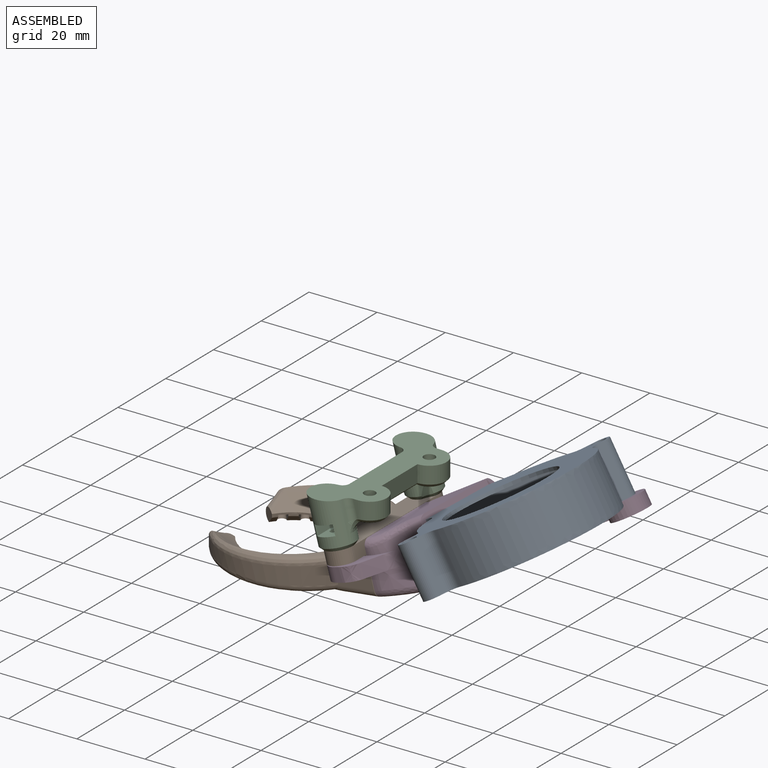
[diagram: assembled view]
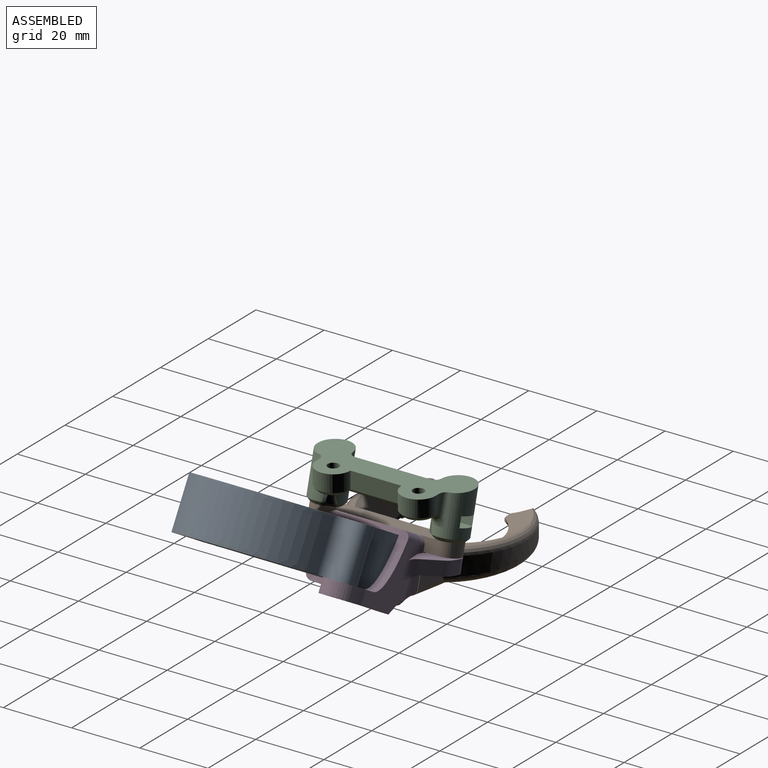
[diagram: assembled view, second angle]
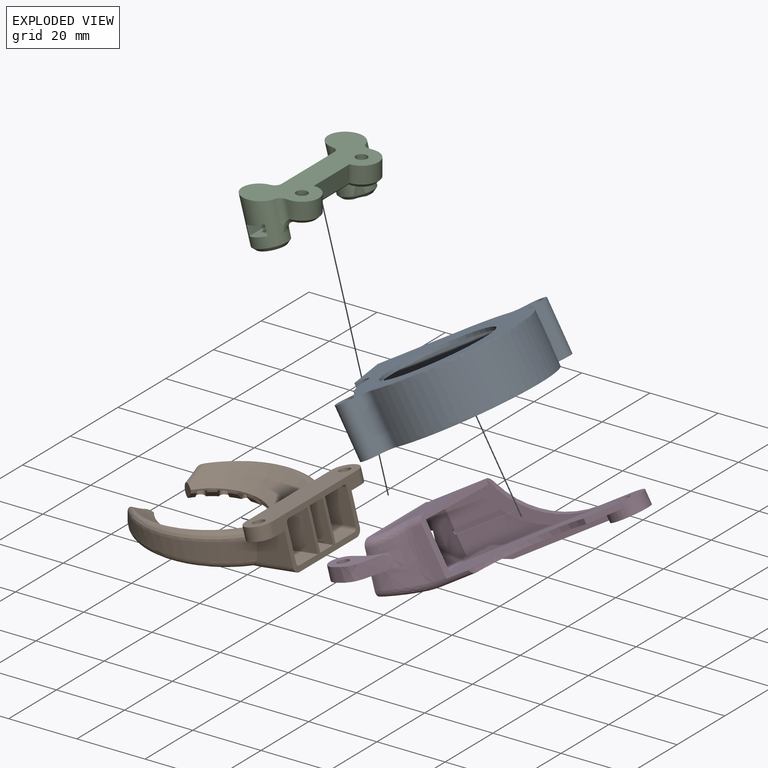
[diagram: exploded view]
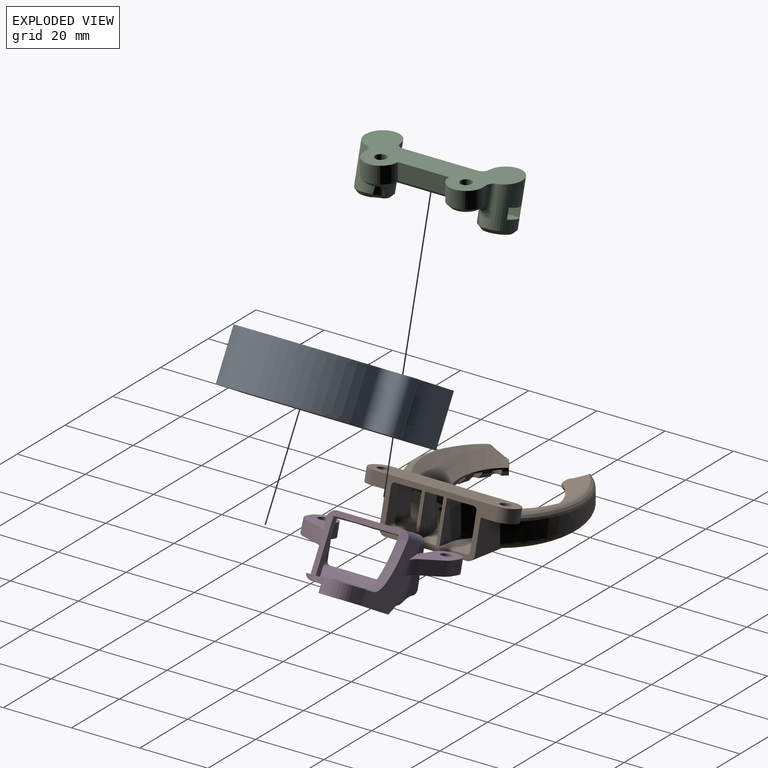
[diagram: exploded view, second angle]
ASSEMBLY  parts=4 mates=4
PART A: 32 faces, bbox 53.1x53.8x17.6 mm
  f0: plane 19x15mm, normal (0,-1,0), area 64mm2, adj f2,f3,f6,f7,f11,f12,f16,f17
  f1: extruded ~15x11.72mm, area 183.9mm2, adj f2,f6,f7,f28
  f2: plane 26x15mm, normal (-1,0,0), area 390mm2, adj f0,f1,f6,f7
  f3: plane 15x1.99mm, normal (1,0,0), area 29.9mm2, adj f0,f6,f7,f8
  f4: extruded ~16.06x15mm, area 248.9mm2, adj f6,f7,f8,f29
  f5: extruded ~40.29x37.08mm, area 1033.5mm2, adj f6,f7,f30,f31
  f6: plane 51.28x50.53mm, normal (0,0,1), area 1377mm2, adj f0,f1,f2,f3,f4,f5,f8,f19
  f7: plane 51.28x50.53mm, normal (0,0,-1), area 2131.8mm2, adj f0,f1,f2,f3,f4,f5,f8,f20
  f8: cylinder r=3mm len=15mm, axis (0,0,-1), area 82mm2, adj f3,f4,f6,f7
  f9: extruded ~13x4.39mm, area 75.2mm2, adj f10,f15,f16,f17
  f10: extruded ~13.24x13mm, area 183.4mm2, adj f9,f11,f16,f17
  f11: plane 25.98x13mm, normal (1,0,0), area 337.7mm2, adj f0,f10,f16,f17
  f12: plane 13x1.99mm, normal (-1,0,0), area 25.9mm2, adj f0,f16,f17,f18
  f13: extruded ~17.22x13mm, area 234.9mm2, adj f14,f16,f17,f18
  f14: extruded ~13x4.22mm, area 74.8mm2, adj f13,f15,f16,f17
  f15: extruded ~40.44x37.34mm, area 918.4mm2, adj f9,f14,f16,f17
  f16: plane 52.83x51.08mm, normal (0,0,-1), area 1165.6mm2, adj f0,f9,f10,f11,f12,f13,f14,f15
  f17: plane 52.83x51.08mm, normal (0,0,1), area 1920.4mm2, adj f0,f9,f10,f11,f12,f13,f14,f15
  f18: cylinder r=4mm len=13mm, axis (0,0,-1), area 94.7mm2, adj f12,f13,f16,f17
  f19: cylinder r=15.5mm len=31mm, axis (0,0,1), area 97.4mm2, adj f6,f16
  f20: plane 15x1.5mm, normal (-0.65,-0.76,0), area 29.6mm2, adj f6,f7,f23,f28
  f21: plane 15x1.5mm, normal (0.65,0.76,0), area 29.6mm2, adj f6,f7,f23,f31
  f22: cylinder r=2mm len=15mm, axis (0,0,-1), area 188.5mm2, adj f6,f7
  f23: cylinder r=3mm len=15mm, axis (0,0,-1), area 141.4mm2, adj f6,f7,f20,f21
  f24: plane 15x1.44mm, normal (0.74,0.68,0), area 29.3mm2, adj f6,f7,f25,f30
  f25: cylinder r=3mm len=15mm, axis (0,0,-1), area 141.4mm2, adj f6,f7,f24,f26
  f26: plane 15x1.44mm, normal (-0.74,-0.68,0), area 29.3mm2, adj f6,f7,f25,f29
  f27: cylinder r=2mm len=15mm, axis (0,0,-1), area 188.5mm2, adj f6,f7
  f28: cylinder r=3mm len=15mm, axis (0,0,-1), area 61.4mm2, adj f1,f6,f7,f20
  f29: cylinder r=3mm len=15mm, axis (0,0,-1), area 60mm2, adj f4,f6,f7,f26
  f30: cylinder r=3mm len=15mm, axis (0,0,-1), area 60.1mm2, adj f5,f6,f7,f24
  f31: cylinder r=3mm len=15mm, axis (0,0,-1), area 61.4mm2, adj f5,f6,f7,f21
PART B: 184 faces, bbox 53.5x56.1x18.7 mm
  f0: cone r=17.06mm half-angle=45deg, axis (0,0,-1), area 0.9mm2, adj f1,f51,f53,f56,f88,f91
  f1: cylinder r=0.5mm len=2.9mm, axis (1,0,0), area 2.1mm2, adj f0,f51,f52,f53,f59
  f2: cylinder r=0.5mm len=2.9mm, axis (-1,0,0), area 2.1mm2, adj f3,f135,f136,f137,f143
  f3: cone r=17.06mm half-angle=45deg, axis (0,0,-1), area 0.9mm2, adj f2,f135,f137,f140,f172,f175
  f4: plane 7.91x7.35mm, normal (0,0.26,-0.97), area 55.1mm2, adj f34,f50,f63,f99
  f5: plane 10.2x7.88mm, normal (0,-0.12,0.99), area 76.7mm2, adj f34,f51,f64,f99
  f6: cone r=16mm half-angle=45deg, axis (0,0,-1), area 8.1mm2, adj f15,f39,f73,f77
  f7: cone r=17.06mm half-angle=45deg, axis (0,0,-1), area 0.6mm2, adj f11,f13,f73,f98
  f8: plane 24x8.01mm, normal (0,0.12,-0.99), area 193.8mm2, adj f15,f34,f61,f145
  f9: cone r=24mm half-angle=55.3deg, axis (0,0,1), area 321.6mm2, adj f36,f38,f39,f41,f43,f44,f60
  f10: plane 17.71x9.98mm, normal (0,0.78,-0.62), area 157mm2, adj f13,f28,f48,f66,f67,f98,f106,f150
  f11: plane 0.49x0.27mm, normal (0,0,1), area 0mm2, adj f7,f14,f73,f98
  f12: plane 28.1x14.97mm, normal (0,0,1), area 136.9mm2, adj f14,f26,f27,f28,f49,f65,f66,f68
  f13: cone r=24.85mm half-angle=55.3deg, axis (0,0,1), area 37.4mm2, adj f7,f10,f26,f27,f65,f67,f69,f70
  f14: bspline ~14.09x12.49mm, area 5.2mm2, adj f11,f12,f15,f73,f74,f98
  f15: plane 45.59x41.44mm, normal (0,0,-1), area 624.9mm2, adj f6,f8,f14,f16,f17,f18,f19,f20
  f16: cone r=16mm half-angle=45deg, axis (0,0,-1), area 8.1mm2, adj f15,f39,f84,f90
  f17: cone r=16mm half-angle=45deg, axis (0,0,-1), area 8.1mm2, adj f15,f39,f80,f85
  f18: cone r=16mm half-angle=45deg, axis (0,0,-1), area 8.1mm2, adj f15,f39,f76,f81
  f19: cone r=16mm half-angle=45deg, axis (0,0,-1), area 8.1mm2, adj f15,f39,f69,f74
  f20: cone r=16mm half-angle=45deg, axis (0,0,-1), area 8.1mm2, adj f15,f39,f65,f70
  f21: cone r=16mm half-angle=45deg, axis (0,0,-1), area 10.7mm2, adj f15,f39,f66,f150
  f22: cone r=17.06mm half-angle=45deg, axis (0,0,-1), area 5.6mm2, adj f51,f56,f84,f87,f88,f90
  f23: cone r=17.06mm half-angle=45deg, axis (0,0,-1), area 5.6mm2, adj f51,f56,f80,f83,f85,f87
  f24: cone r=17.06mm half-angle=45deg, axis (0,0,-1), area 5.6mm2, adj f51,f56,f76,f79,f81,f83
  f25: cone r=17.06mm half-angle=45deg, axis (0,0,-1), area 3mm2, adj f51,f56,f77,f79,f99
  f26: cone r=17.06mm half-angle=45deg, axis (0,0,-1), area 4.1mm2, adj f12,f13,f69,f74
  f27: cone r=17.06mm half-angle=45deg, axis (0,0,-1), area 4.1mm2, adj f12,f13,f65,f70
  f28: cone r=17.06mm half-angle=45deg, axis (0,0,-1), area 5.9mm2, adj f10,f12,f66,f150
  f29: plane 6.62x4.29mm, normal (0,-0.97,-0.26), area 16.3mm2, adj f31,f32,f33,f35,f60
  f30: cylinder r=1.65mm len=4.52mm, axis (0,-0.26,0.97), area 39.4mm2, adj f32,f35
  f31: cylinder r=4mm len=8.71mm, axis (0,-0.26,0.97), area 47.8mm2, adj f29,f32,f34,f35
  f32: plane 8x7.73mm, normal (0,0.26,-0.97), area 48.6mm2, adj f29,f30,f31,f33,f34
  f33: plane 11.83x10.3mm, normal (-1,0,0), area 83.7mm2, adj f29,f32,f34,f40,f43,f45,f60,f61
  f34: plane 36.12x14.71mm, normal (0,0.97,0.26), area 174.4mm2, adj f4,f5,f8,f31,f32,f33,f35,f47
  f35: plane 44x7.73mm, normal (0,-0.26,0.97), area 321.2mm2, adj f29,f30,f31,f34,f36,f119,f120,f121
  f36: plane 24.01x10.52mm, normal (0,-0.78,0.62), area 259.2mm2, adj f9,f35,f60,f104,f144
  f37: plane 4.01x2.08mm, normal (0,-1,0), area 4.5mm2, adj f38,f40,f44,f46
  f38: plane 4.36x3.82mm, normal (0.83,-0.55,0), area 11.3mm2, adj f9,f37,f39,f42,f44,f46
  f39: cylinder r=14mm len=28mm, axis (0,0,-1), area 54mm2, adj f6,f9,f16,f17,f18,f19,f20,f21
  f40: cylinder r=23.57mm len=37.96mm, axis (0,0,-1), area 194.7mm2, adj f33,f37,f43,f44,f45
  f41: plane 18.53x9.05mm, normal (0,-0.07,1), area 12.6mm2, adj f9,f43,f60
  f42: cone r=16mm half-angle=45deg, axis (0,0,-1), area 4.9mm2, adj f15,f38,f39,f46,f91
  f43: bspline ~41.89x13.61mm, area 120mm2, adj f9,f33,f40,f41,f44,f60
  f44: bspline ~11.68x7.46mm, area 23.6mm2, adj f9,f37,f38,f40,f43
  f45: torus R=21.57mm, axis (0,0,1), area 132.7mm2, adj f15,f33,f40,f46,f61
  f46: cylinder r=2mm len=5.12mm, axis (1,0,0), area 13.4mm2, adj f15,f37,f38,f42,f45
  f47: plane 11.05x11.01mm, normal (1,0,0), area 85.7mm2, adj f34,f62,f63,f64,f94,f95
  f48: plane 8.78x7.41mm, normal (0,0.26,-0.97), area 46.8mm2, adj f10,f34,f98,f182
  f49: plane 7.81x6.41mm, normal (0,-0.12,0.99), area 42.7mm2, adj f12,f34,f98,f182
  f50: plane 8.04x6.75mm, normal (0,0.78,-0.62), area 34.9mm2, adj f4,f56,f62,f97,f99
  f51: plane 36.78x16.54mm, normal (0,0,1), area 172.1mm2, adj f0,f1,f5,f22,f23,f24,f25,f59
  f52: plane 2.7x2.13mm, normal (0,1,0), area 4mm2, adj f1,f53,f54,f58
  f53: plane 2.09x1.62mm, normal (-0.83,0.55,0), area 1.6mm2, adj f0,f1,f52,f56,f58
  f54: cylinder r=22.07mm len=35.14mm, axis (0,0,-1), area 187.7mm2, adj f52,f56,f57,f58,f59,f93,f94
  f55: plane 11.34x7.58mm, normal (0,0.07,-1), area 5.3mm2, adj f56,f57,f97
  f56: cone r=24.85mm half-angle=55.3deg, axis (0,0,1), area 217.2mm2, adj f0,f22,f23,f24,f25,f50,f53,f54
  f57: bspline ~31.49x12.1mm, area 18.1mm2, adj f54,f55,f56,f95,f96
  f58: bspline ~6.35x3.54mm, area 3.7mm2, adj f52,f53,f54,f56
  f59: torus R=21.57mm, axis (0,0,-1), area 32mm2, adj f1,f51,f54,f92
  f60: cylinder r=2mm len=6.26mm, axis (0,-0.62,-0.78), area 12.3mm2, adj f9,f29,f33,f36,f41,f43
  f61: cylinder r=2mm len=13.33mm, axis (0,-0.99,-0.12), area 34.1mm2, adj f8,f15,f33,f34,f45
  f62: cylinder r=1mm len=4.02mm, axis (0,0.62,0.78), area 5.2mm2, adj f47,f50,f63,f96,f97
  f63: cylinder r=1mm len=7.51mm, axis (0,0.97,0.26), area 11.5mm2, adj f4,f34,f47,f62
  f64: cylinder r=1mm len=11.31mm, axis (0,0.99,0.12), area 16.5mm2, adj f5,f34,f47,f51,f92,f93
  f65: plane 2.61x2.51mm, normal (0.98,0.21,0), area 3.7mm2, adj f12,f13,f15,f20,f27,f39,f67,f68
  f66: plane 2.61x2.51mm, normal (-0.98,-0.21,0), area 3.7mm2, adj f10,f12,f15,f21,f28,f39,f67,f68
  f67: plane 2.84x2.14mm, normal (0,0,-1), area 4.6mm2, adj f10,f13,f39,f65,f66
  f68: bspline ~7.79x3.82mm, area 6.1mm2, adj f12,f15,f65,f66
  f69: plane 2.51x2.25mm, normal (0.84,0.54,0), area 3.7mm2, adj f12,f13,f15,f19,f26,f39,f71,f72
  f70: plane 2.51x2.25mm, normal (-0.84,-0.54,0), area 3.7mm2, adj f12,f13,f15,f20,f27,f39,f71,f72
  f71: plane 3.14x2.96mm, normal (0,0,-1), area 4.8mm2, adj f13,f39,f69,f70
  f72: bspline ~16.27x9.34mm, area 6.1mm2, adj f12,f15,f69,f70
  f73: plane 2.51x2.13mm, normal (0.6,0.8,0), area 3.7mm2, adj f6,f7,f11,f13,f14,f15,f39,f75
  f74: plane 2.51x2.13mm, normal (-0.6,-0.8,0), area 3.7mm2, adj f12,f13,f14,f15,f19,f26,f39,f75
  f75: plane 3.15x3.04mm, normal (0,0,-1), area 4.8mm2, adj f13,f39,f73,f74
  f76: plane 2.55x2.51mm, normal (0.28,0.96,0), area 3.7mm2, adj f15,f18,f24,f39,f56,f78,f79
  f77: plane 2.55x2.51mm, normal (-0.28,-0.96,0), area 3.7mm2, adj f6,f15,f25,f39,f56,f78,f79
  f78: plane 2.94x2.55mm, normal (0,0,-1), area 4.8mm2, adj f39,f56,f76,f77
  f79: bspline ~17.92x7.29mm, area 5mm2, adj f15,f24,f25,f51,f76,f77
  f80: plane 2.65x2.51mm, normal (-0.07,1,0), area 3.7mm2, adj f15,f17,f23,f39,f56,f82,f83
  f81: plane 2.65x2.51mm, normal (0.07,-1,0), area 3.7mm2, adj f15,f18,f24,f39,f56,f82,f83
  f82: plane 2.63x2.09mm, normal (0,0,-1), area 4.8mm2, adj f39,f56,f80,f81
  f83: bspline ~18.3x3.69mm, area 5mm2, adj f15,f23,f24,f51,f80,f81
  f84: plane 2.51x2.42mm, normal (-0.41,0.91,0), area 3.7mm2, adj f15,f16,f22,f39,f56,f86,f87
  f85: plane 2.51x2.42mm, normal (0.41,-0.91,0), area 3.7mm2, adj f15,f17,f23,f39,f56,f86,f87
  f86: plane 3.07x2.78mm, normal (0,0,-1), area 4.8mm2, adj f39,f56,f84,f85
  f87: bspline ~17.24x9.44mm, area 5mm2, adj f15,f22,f23,f51,f84,f85
  f88: bspline ~14.16x14.16mm, area 5mm2, adj f0,f15,f22,f51,f90,f91
  f89: plane 3.13x3.13mm, normal (0,0,-1), area 4.8mm2, adj f39,f56,f90,f91
  f90: plane 2.51x1.88mm, normal (0.71,-0.71,0), area 3.7mm2, adj f15,f16,f22,f39,f56,f88,f89
  f91: plane 2.51x1.88mm, normal (-0.71,0.71,0), area 3.7mm2, adj f0,f15,f39,f42,f56,f88,f89
  f92: bspline ~2.29x1.45mm, area 1.1mm2, adj f51,f59,f64,f93
  f93: bspline ~1.64x1.18mm, area 0.6mm2, adj f54,f64,f92,f94
  f94: cylinder r=2mm len=5.54mm, axis (0,0,-1), area 10.2mm2, adj f47,f54,f93,f95
  f95: bspline ~2.27x2.22mm, area 2.3mm2, adj f47,f57,f94,f96
  f96: bspline ~2.04x1.63mm, area 1.3mm2, adj f57,f62,f95,f97
  f97: bspline ~2.3x2.28mm, area 2.2mm2, adj f50,f55,f56,f62,f96
  f98: extruded ~25.75x13.32mm, area 187.6mm2, adj f7,f10,f11,f12,f13,f14,f34,f48
  f99: extruded ~26.71x12.94mm, area 201.7mm2, adj f4,f5,f25,f34,f50,f51,f56
  f100: plane 7.91x7.35mm, normal (0,0.26,-0.97), area 55.1mm2, adj f34,f134,f147,f183
  f101: plane 10.2x7.88mm, normal (0,-0.12,0.99), area 76.7mm2, adj f34,f135,f148,f183
  f102: cone r=16mm half-angle=45deg, axis (0,0,-1), area 8.1mm2, adj f15,f39,f157,f161
  f103: cone r=17.06mm half-angle=45deg, axis (0,0,-1), area 0.6mm2, adj f105,f106,f157,f182
  f104: cone r=24mm half-angle=55.3deg, axis (0,0,1), area 321.6mm2, adj f36,f39,f125,f127,f129,f130,f144
  f105: plane 0.49x0.27mm, normal (0,0,1), area 0mm2, adj f103,f107,f157,f182
  f106: cone r=24.85mm half-angle=55.3deg, axis (0,0,1), area 37.4mm2, adj f10,f103,f117,f118,f149,f151,f153,f154
  f107: bspline ~14.09x12.49mm, area 5.2mm2, adj f12,f15,f105,f157,f158,f182
  f108: cone r=16mm half-angle=45deg, axis (0,0,-1), area 8.1mm2, adj f15,f39,f168,f174
  f109: cone r=16mm half-angle=45deg, axis (0,0,-1), area 8.1mm2, adj f15,f39,f164,f169
  f110: cone r=16mm half-angle=45deg, axis (0,0,-1), area 8.1mm2, adj f15,f39,f160,f165
  f111: cone r=16mm half-angle=45deg, axis (0,0,-1), area 8.1mm2, adj f15,f39,f153,f158
  f112: cone r=16mm half-angle=45deg, axis (0,0,-1), area 8.1mm2, adj f15,f39,f149,f154
  f113: cone r=17.06mm half-angle=45deg, axis (0,0,-1), area 5.6mm2, adj f135,f140,f168,f171,f172,f174
  f114: cone r=17.06mm half-angle=45deg, axis (0,0,-1), area 5.6mm2, adj f135,f140,f164,f167,f169,f171
  f115: cone r=17.06mm half-angle=45deg, axis (0,0,-1), area 5.6mm2, adj f135,f140,f160,f163,f165,f167
  f116: cone r=17.06mm half-angle=45deg, axis (0,0,-1), area 3mm2, adj f135,f140,f161,f163,f183
  f117: cone r=17.06mm half-angle=45deg, axis (0,0,-1), area 4.1mm2, adj f12,f106,f153,f158
  f118: cone r=17.06mm half-angle=45deg, axis (0,0,-1), area 4.1mm2, adj f12,f106,f149,f154
  f119: plane 6.62x4.29mm, normal (0,-0.97,-0.26), area 16.3mm2, adj f35,f121,f122,f123,f144
  f120: cylinder r=1.65mm len=4.52mm, axis (0,-0.26,0.97), area 39.4mm2, adj f35,f122
  f121: cylinder r=4mm len=8.71mm, axis (0,-0.26,0.97), area 47.8mm2, adj f34,f35,f119,f122
  f122: plane 8x7.73mm, normal (0,0.26,-0.97), area 48.6mm2, adj f34,f119,f120,f121,f123
  f123: plane 11.83x10.3mm, normal (1,0,0), area 83.7mm2, adj f34,f119,f122,f126,f129,f131,f144,f145
  f124: plane 4.01x2.08mm, normal (0,-1,0), area 4.5mm2, adj f125,f126,f130,f132
  f125: plane 4.36x3.82mm, normal (-0.83,-0.55,0), area 11.3mm2, adj f39,f104,f124,f128,f130,f132
  f126: cylinder r=23.57mm len=37.96mm, axis (0,0,-1), area 194.7mm2, adj f123,f124,f129,f130,f131
  f127: plane 18.53x9.05mm, normal (0,-0.07,1), area 12.6mm2, adj f104,f129,f144
  f128: cone r=16mm half-angle=45deg, axis (0,0,-1), area 4.9mm2, adj f15,f39,f125,f132,f175
  f129: bspline ~41.89x13.61mm, area 120mm2, adj f104,f123,f126,f127,f130,f144
  f130: bspline ~11.68x7.46mm, area 23.6mm2, adj f104,f124,f125,f126,f129
  f131: torus R=21.57mm, axis (0,0,1), area 132.7mm2, adj f15,f123,f126,f132,f145
  f132: cylinder r=2mm len=5.12mm, axis (-1,0,0), area 13.4mm2, adj f15,f124,f125,f128,f131
  f133: plane 11.05x11.01mm, normal (-1,0,0), area 85.7mm2, adj f34,f146,f147,f148,f178,f179
  f134: plane 8.04x6.75mm, normal (0,0.78,-0.62), area 34.9mm2, adj f100,f140,f146,f181,f183
  f135: plane 36.78x16.54mm, normal (0,0,1), area 172.1mm2, adj f2,f3,f101,f113,f114,f115,f116,f143
  f136: plane 2.7x2.13mm, normal (0,1,0), area 4mm2, adj f2,f137,f138,f142
  f137: plane 2.09x1.62mm, normal (0.83,0.55,0), area 1.6mm2, adj f2,f3,f136,f140,f142
  f138: cylinder r=22.07mm len=35.14mm, axis (0,0,-1), area 187.7mm2, adj f136,f140,f141,f142,f143,f177,f178
  f139: plane 11.34x7.58mm, normal (0,0.07,-1), area 5.3mm2, adj f140,f141,f181
  f140: cone r=24.85mm half-angle=55.3deg, axis (0,0,1), area 217.2mm2, adj f3,f113,f114,f115,f116,f134,f137,f138
  f141: bspline ~31.49x12.1mm, area 18.1mm2, adj f138,f139,f140,f179,f180
  f142: bspline ~6.35x3.54mm, area 3.7mm2, adj f136,f137,f138,f140
  f143: torus R=21.57mm, axis (0,0,-1), area 32mm2, adj f2,f135,f138,f176
  f144: cylinder r=2mm len=6.26mm, axis (0,-0.62,-0.78), area 12.3mm2, adj f36,f104,f119,f123,f127,f129
  f145: cylinder r=2mm len=13.33mm, axis (0,-0.99,-0.12), area 34.1mm2, adj f8,f15,f34,f123,f131
  f146: cylinder r=1mm len=4.02mm, axis (0,0.62,0.78), area 5.2mm2, adj f133,f134,f147,f180,f181
  f147: cylinder r=1mm len=7.51mm, axis (0,0.97,0.26), area 11.5mm2, adj f34,f100,f133,f146
  f148: cylinder r=1mm len=11.31mm, axis (0,0.99,0.12), area 16.5mm2, adj f34,f101,f133,f135,f176,f177
  f149: plane 2.61x2.51mm, normal (-0.98,0.21,0), area 3.7mm2, adj f12,f15,f39,f106,f112,f118,f151,f152
  f150: plane 2.61x2.51mm, normal (0.98,-0.21,0), area 3.7mm2, adj f10,f12,f15,f21,f28,f39,f151,f152
  f151: plane 2.84x2.14mm, normal (0,0,-1), area 4.6mm2, adj f10,f39,f106,f149,f150
  f152: bspline ~7.79x3.82mm, area 6.1mm2, adj f12,f15,f149,f150
  f153: plane 2.51x2.25mm, normal (-0.84,0.54,0), area 3.7mm2, adj f12,f15,f39,f106,f111,f117,f155,f156
  f154: plane 2.51x2.25mm, normal (0.84,-0.54,0), area 3.7mm2, adj f12,f15,f39,f106,f112,f118,f155,f156
  f155: plane 3.14x2.96mm, normal (0,0,-1), area 4.8mm2, adj f39,f106,f153,f154
  f156: bspline ~16.27x9.34mm, area 6.1mm2, adj f12,f15,f153,f154
  f157: plane 2.51x2.13mm, normal (-0.6,0.8,0), area 3.7mm2, adj f15,f39,f102,f103,f105,f106,f107,f159
  f158: plane 2.51x2.13mm, normal (0.6,-0.8,0), area 3.7mm2, adj f12,f15,f39,f106,f107,f111,f117,f159
  f159: plane 3.15x3.04mm, normal (0,0,-1), area 4.8mm2, adj f39,f106,f157,f158
  f160: plane 2.55x2.51mm, normal (-0.28,0.96,0), area 3.7mm2, adj f15,f39,f110,f115,f140,f162,f163
  f161: plane 2.55x2.51mm, normal (0.28,-0.96,0), area 3.7mm2, adj f15,f39,f102,f116,f140,f162,f163
  f162: plane 2.94x2.55mm, normal (0,0,-1), area 4.8mm2, adj f39,f140,f160,f161
  f163: bspline ~17.92x7.29mm, area 5mm2, adj f15,f115,f116,f135,f160,f161
  f164: plane 2.65x2.51mm, normal (0.07,1,0), area 3.7mm2, adj f15,f39,f109,f114,f140,f166,f167
  f165: plane 2.65x2.51mm, normal (-0.07,-1,0), area 3.7mm2, adj f15,f39,f110,f115,f140,f166,f167
  f166: plane 2.63x2.09mm, normal (0,0,-1), area 4.8mm2, adj f39,f140,f164,f165
  f167: bspline ~18.3x3.69mm, area 5mm2, adj f15,f114,f115,f135,f164,f165
  f168: plane 2.51x2.42mm, normal (0.41,0.91,0), area 3.7mm2, adj f15,f39,f108,f113,f140,f170,f171
  f169: plane 2.51x2.42mm, normal (-0.41,-0.91,0), area 3.7mm2, adj f15,f39,f109,f114,f140,f170,f171
  f170: plane 3.07x2.78mm, normal (0,0,-1), area 4.8mm2, adj f39,f140,f168,f169
  f171: bspline ~17.24x9.44mm, area 5mm2, adj f15,f113,f114,f135,f168,f169
  f172: bspline ~14.16x14.16mm, area 5mm2, adj f3,f15,f113,f135,f174,f175
  f173: plane 3.13x3.13mm, normal (0,0,-1), area 4.8mm2, adj f39,f140,f174,f175
  f174: plane 2.51x1.88mm, normal (-0.71,-0.71,0), area 3.7mm2, adj f15,f39,f108,f113,f140,f172,f173
  f175: plane 2.51x1.88mm, normal (0.71,0.71,0), area 3.7mm2, adj f3,f15,f39,f128,f140,f172,f173
  f176: bspline ~2.29x1.59mm, area 1.1mm2, adj f135,f143,f148,f177
  f177: bspline ~1.64x1.03mm, area 0.6mm2, adj f138,f148,f176,f178
  f178: cylinder r=2mm len=5.54mm, axis (0,0,-1), area 10.2mm2, adj f133,f138,f177,f179
  f179: bspline ~2.58x2.27mm, area 2.3mm2, adj f133,f141,f178,f180
  f180: bspline ~2.04x1.63mm, area 1.3mm2, adj f141,f146,f179,f181
  f181: bspline ~2.3x2.28mm, area 2.2mm2, adj f134,f139,f140,f146,f180
  f182: extruded ~25.75x13.32mm, area 187.6mm2, adj f10,f12,f34,f48,f49,f103,f105,f106
  f183: extruded ~26.71x12.94mm, area 201.7mm2, adj f34,f100,f101,f116,f134,f135,f140
PART C: 72 faces, bbox 18.8x46.2x17 mm
  f0: cylinder r=1.65mm len=4mm, axis (0,0,-1), area 41.5mm2, adj f4,f25
  f1: plane 32.87x10mm, normal (0,0,-1), area 125.5mm2, adj f20,f22,f24,f27,f30,f31,f32,f55
  f2: plane 22.49x5.03mm, normal (-1,0,0), area 111.1mm2, adj f4,f23,f27,f28,f58,f62
  f3: plane 5.1x1.4mm, normal (0,-1,0), area 3.6mm2, adj f4,f6,f18,f34
  f4: plane 46.15x18.8mm, normal (0,0,1), area 449.8mm2, adj f0,f2,f3,f6,f7,f17,f18,f23
  f5: plane 8.01x7.74mm, normal (0.26,0,-0.97), area 40.4mm2, adj f8,f37,f38
  f6: cylinder r=5mm len=10mm, axis (0,0,1), area 78.6mm2, adj f3,f4,f7,f31,f32,f33
  f7: plane 15x5mm, normal (1,0,0), area 75mm2, adj f4,f6,f30,f42
  f8: cylinder r=1.65mm len=4.72mm, axis (0.26,0,-0.97), area 41.5mm2, adj f5,f10
  f9: plane 8.18x5.31mm, normal (0.26,0,-0.97), area 30.6mm2, adj f11,f12,f13,f14,f16,f17
  f10: plane 8.18x5.31mm, normal (-0.26,0,0.97), area 30.6mm2, adj f8,f11,f12,f13,f14,f17
  f11: plane 3.61x3.43mm, normal (-0.48,-0.87,-0.13), area 9.5mm2, adj f9,f10,f12,f14
  f12: plane 5.76x2.9mm, normal (-0.97,0,-0.26), area 17.3mm2, adj f9,f10,f11,f17
  f13: plane 5.76x2.9mm, normal (0.97,0,0.26), area 17.3mm2, adj f9,f10,f14,f17
  f14: plane 3.61x3.43mm, normal (0.48,-0.87,0.13), area 9.5mm2, adj f9,f10,f11,f13
  f15: plane 3.3x3.19mm, normal (0.26,0,-0.97), area 8.6mm2, adj f16
  f16: cylinder r=1.65mm len=3.96mm, axis (0.26,0,-0.97), area 31.1mm2, adj f9,f15
  f17: cylinder r=5mm len=16.11mm, axis (0.26,0,-0.97), area 288.1mm2, adj f4,f9,f10,f12,f13,f18,f19,f20
  f18: cylinder r=2mm len=6.23mm, axis (0.26,0,-0.97), area 15.3mm2, adj f3,f4,f17,f19,f36
  f19: bspline ~9.56x3.97mm, area 3mm2, adj f17,f18,f35
  f20: bspline ~5.34x2.85mm, area 6.6mm2, adj f1,f17,f21,f24,f33,f35,f36
  f21: bspline ~3.08x2.98mm, area 1mm2, adj f17,f20,f22,f24,f26
  f22: bspline ~7.36x3.19mm, area 12.9mm2, adj f1,f17,f21,f24,f28,f29
  f23: bspline ~8.04x2.33mm, area 17.7mm2, adj f2,f4,f17,f29
  f24: cylinder r=3.25mm len=6.5mm, axis (0,0,-1), area 46mm2, adj f1,f20,f21,f22,f25
  f25: plane 6.5x6.5mm, normal (0,0,-1), area 24.6mm2, adj f0,f24
  f26: cylinder r=3.25mm len=3.75mm, axis (0,0,-1), area 7.4mm2, adj f17,f21,f37,f38
  f27: plane 22.01x1mm, normal (-0.71,0,-0.71), area 31.1mm2, adj f1,f2,f28,f62
  f28: bspline ~1.01x1mm, area 0.2mm2, adj f2,f22,f27,f29
  f29: bspline ~2.8x2.31mm, area 2mm2, adj f22,f23,f28
  f30: plane 17.37x1.11mm, normal (0.71,0,-0.71), area 22.7mm2, adj f1,f7,f31,f64
  f31: cone r=4mm half-angle=45deg, axis (0,0,1), area 10.8mm2, adj f1,f6,f30,f32
  f32: cone r=4mm half-angle=45deg, axis (0,0,1), area 8.8mm2, adj f1,f6,f31,f33
  f33: bspline ~1.07x1.07mm, area 0.9mm2, adj f6,f20,f32,f34
  f34: bspline ~1.06x0.98mm, area 0mm2, adj f3,f33,f36
  f35: bspline ~3.14x2.55mm, area 1.8mm2, adj f19,f20,f36
  f36: bspline ~1.2x1.17mm, area 0.9mm2, adj f18,f20,f34,f35
  f37: cone r=4mm half-angle=45deg, axis (-0.26,0,0.97), area 35.7mm2, adj f5,f17,f26,f38
  f38: bspline ~2.74x2.6mm, area 3.9mm2, adj f5,f26,f37
  f39: cylinder r=1.65mm len=4mm, axis (0,0,-1), area 41.5mm2, adj f4,f60
  f40: plane 5.1x1.4mm, normal (0,1,0), area 3.6mm2, adj f4,f42,f53,f67
  f41: plane 8.01x7.74mm, normal (0.26,0,-0.97), area 40.4mm2, adj f43,f70,f71
  f42: cylinder r=5mm len=10mm, axis (0,0,1), area 78.6mm2, adj f4,f7,f40,f64,f65,f66
  f43: cylinder r=1.65mm len=4.72mm, axis (0.26,0,-0.97), area 41.5mm2, adj f41,f45
  f44: plane 8.18x5.31mm, normal (0.26,0,-0.97), area 30.6mm2, adj f46,f47,f48,f49,f51,f52
  f45: plane 8.18x5.31mm, normal (-0.26,0,0.97), area 30.6mm2, adj f43,f46,f47,f48,f49,f52
  f46: plane 3.61x3.43mm, normal (-0.48,0.87,-0.13), area 9.5mm2, adj f44,f45,f47,f49
  f47: plane 5.76x2.9mm, normal (-0.97,0,-0.26), area 17.3mm2, adj f44,f45,f46,f52
  f48: plane 5.76x2.9mm, normal (0.97,0,0.26), area 17.3mm2, adj f44,f45,f49,f52
  f49: plane 3.61x3.43mm, normal (0.48,0.87,0.13), area 9.5mm2, adj f44,f45,f46,f48
  f50: plane 3.3x3.19mm, normal (0.26,0,-0.97), area 8.6mm2, adj f51
  f51: cylinder r=1.65mm len=3.96mm, axis (0.26,0,-0.97), area 31.1mm2, adj f44,f50
  f52: cylinder r=5mm len=16.11mm, axis (0.26,0,-0.97), area 288.1mm2, adj f4,f44,f45,f47,f48,f53,f54,f55
  f53: cylinder r=2mm len=6.23mm, axis (0.26,0,-0.97), area 15.3mm2, adj f4,f40,f52,f54,f69
  f54: bspline ~9.56x3.97mm, area 2.9mm2, adj f52,f53,f68
  f55: bspline ~5.34x2.85mm, area 6.7mm2, adj f1,f52,f56,f59,f66,f68,f69
  f56: bspline ~3.15x2.99mm, area 1mm2, adj f52,f55,f57,f59,f61
  f57: bspline ~7.36x3.19mm, area 13mm2, adj f1,f52,f56,f59,f62,f63
  f58: bspline ~8.04x2.33mm, area 17.7mm2, adj f2,f4,f52,f63
  f59: cylinder r=3.25mm len=6.5mm, axis (0,0,-1), area 46mm2, adj f1,f55,f56,f57,f60
  f60: plane 6.5x6.5mm, normal (0,0,-1), area 24.6mm2, adj f39,f59
  f61: cylinder r=3.25mm len=3.75mm, axis (0,0,-1), area 7.3mm2, adj f52,f56,f70,f71
  f62: bspline ~1.01x1mm, area 0.3mm2, adj f2,f27,f57,f63
  f63: bspline ~2.8x2.31mm, area 2mm2, adj f57,f58,f62
  f64: cone r=4mm half-angle=45deg, axis (0,0,1), area 10.8mm2, adj f1,f30,f42,f65
  f65: cone r=4mm half-angle=45deg, axis (0,0,1), area 8.8mm2, adj f1,f42,f64,f66
  f66: bspline ~1.07x1.06mm, area 1mm2, adj f42,f55,f65,f67
  f67: bspline ~1.06x0.98mm, area 0mm2, adj f40,f66,f69
  f68: bspline ~3.14x2.55mm, area 1.8mm2, adj f54,f55,f69
  f69: bspline ~1.2x1.17mm, area 0.9mm2, adj f53,f55,f67,f68
  f70: cone r=4mm half-angle=45deg, axis (-0.26,0,0.97), area 35.7mm2, adj f41,f52,f61,f71
  f71: bspline ~3.5x3.28mm, area 3.9mm2, adj f41,f61,f70
PART D: 93 faces, bbox 56.2x65.9x23.6 mm
  f0: plane 37.4x17.15mm, normal (0.94,0.34,0), area 271.7mm2, adj f1,f5,f37,f44,f46,f47,f61,f79
  f1: plane 13.69x8.39mm, normal (1,0,0), area 77.5mm2, adj f0,f6,f78,f79,f80,f81,f88
  f2: bspline ~12x4.23mm, area 5.6mm2, adj f3,f23,f26,f69
  f3: plane 43.7x18.5mm, normal (-0.94,-0.34,0), area 437.2mm2, adj f2,f4,f5,f25,f26,f48,f51,f60
  f4: bspline ~8.94x5.1mm, area 28.3mm2, adj f3,f24,f25,f72
  f5: plane 50.22x36.75mm, normal (0,0,1), area 614.4mm2, adj f0,f3,f36,f37,f43,f47,f48,f49
  f6: plane 28.4x14.59mm, normal (0,-0.97,0.26), area 119.3mm2, adj f1,f8,f9,f10,f11,f12,f13,f14
  f7: cylinder r=1.65mm len=3.71mm, axis (0,0.26,0.97), area 20.7mm2, adj f16,f19
  f8: plane 1.98x0.71mm, normal (1,0,0), area 0.4mm2, adj f6,f16,f40,f62
  f9: plane 24x0.19mm, normal (0,-0.26,-0.97), area 4.8mm2, adj f6,f42,f65,f71
  f10: plane 24x0.19mm, normal (0,0.26,0.97), area 4.8mm2, adj f6,f41,f62,f68
  f11: plane 4.99x1.52mm, normal (1,0,0), area 1mm2, adj f6,f15,f40,f65
  f12: plane 23x0.19mm, normal (0,0.26,0.97), area 4.6mm2, adj f6,f47,f77,f78
  f13: plane 23x0.19mm, normal (0,-0.26,-0.97), area 4.6mm2, adj f6,f46,f75,f80
  f14: plane 9.82x2.81mm, normal (-1,0,0), area 2mm2, adj f6,f45,f75,f77
  f15: plane 16.25x12.78mm, normal (0,-0.26,-0.97), area 52.4mm2, adj f6,f11,f17,f18,f20,f21,f33,f40
  f16: plane 15.77x13.07mm, normal (0,0.26,0.97), area 68.6mm2, adj f6,f7,f8,f17,f18,f21,f33,f40
  f17: plane 4.31x2.35mm, normal (1,0,0), area 6.1mm2, adj f15,f16,f18,f86
  f18: cylinder r=4mm len=4.9mm, axis (0,0.26,0.97), area 25.1mm2, adj f15,f16,f17,f33
  f19: plane 6x5.8mm, normal (0,-0.26,-0.97), area 19.7mm2, adj f7,f20
  f20: cylinder r=3mm len=6.31mm, axis (0,-0.26,-0.97), area 37.7mm2, adj f15,f19
  f21: plane 5.1x4.95mm, normal (-1,0,0), area 16.8mm2, adj f6,f15,f16,f33
  f22: cylinder r=1.65mm len=3.71mm, axis (0,0.26,0.97), area 20.7mm2, adj f26,f29
  f23: plane 1.98x0.71mm, normal (-1,0,0), area 0.4mm2, adj f2,f6,f26,f68
  f24: plane 4.99x1.52mm, normal (-1,0,0), area 1mm2, adj f4,f6,f25,f71
  f25: plane 19.55x8.57mm, normal (0,-0.26,-0.97), area 70.3mm2, adj f3,f4,f6,f24,f27,f28,f30,f31
  f26: plane 18.96x8.29mm, normal (0,0.26,0.97), area 87.7mm2, adj f2,f3,f6,f22,f23,f27,f28,f31
  f27: plane 4.61x3.81mm, normal (-1,0,0), area 11.5mm2, adj f25,f26,f28,f87
  f28: cylinder r=4mm len=4.9mm, axis (0,0.26,0.97), area 25.1mm2, adj f25,f26,f27,f32
  f29: plane 6x5.8mm, normal (0,-0.26,-0.97), area 19.7mm2, adj f22,f30
  f30: cylinder r=3mm len=6.31mm, axis (0,-0.26,-0.97), area 37.7mm2, adj f25,f29
  f31: plane 5.1x4.95mm, normal (1,0,0), area 16.8mm2, adj f6,f25,f26,f32
  f32: cylinder r=4mm len=4.9mm, axis (0,0.26,0.97), area 24.3mm2, adj f25,f26,f28,f31
  f33: cylinder r=4mm len=4.9mm, axis (0,0.26,0.97), area 24.3mm2, adj f15,f16,f18,f21
  f34: plane 47.79x32.31mm, normal (0,0,-1), area 522mm2, adj f35,f42,f49,f50,f59,f67,f73
  f35: extruded ~8.4x7.34mm, area 33.9mm2, adj f34,f48,f51,f59
  f36: cylinder r=1.65mm len=3.3mm, axis (0,0,-1), area 15.6mm2, adj f5,f58
  f37: plane 23.8x16.99mm, normal (0.17,0.98,0), area 60.5mm2, adj f0,f5,f38,f39,f43,f44,f64,f67
  f38: plane 14x2.82mm, normal (0.94,0.34,0), area 42mm2, adj f37,f40,f64,f67
  f39: plane 22.93x14.11mm, normal (0,0,1), area 183.1mm2, adj f37,f41,f61,f64,f70
  f40: bspline ~14.38x12.97mm, area 132.6mm2, adj f8,f11,f15,f16,f38,f63,f66,f83
  f41: bspline ~24.61x8.93mm, area 129.4mm2, adj f10,f39,f63,f69
  f42: bspline ~24.61x12.84mm, area 227.4mm2, adj f9,f34,f66,f72
  f43: plane 15x3.63mm, normal (-0.94,-0.34,0), area 58mm2, adj f5,f37,f44,f45
  f44: plane 22.93x13.94mm, normal (0,0,-1), area 177.7mm2, adj f0,f37,f43,f46
  f45: offset ~18.29x16.08mm, area 173.5mm2, adj f14,f43,f46,f47,f74,f76
  f46: offset ~31.16x12.49mm, area 139.8mm2, adj f0,f13,f44,f45,f74,f81
  f47: offset ~27.48x15.91mm, area 220.2mm2, adj f0,f5,f12,f45,f76,f79
  f48: cylinder r=5.5mm len=10.17mm, axis (0,0,-1), area 64.6mm2, adj f3,f5,f35,f49,f51
  f49: plane 8.53x5.29mm, normal (0.85,0.53,0), area 15.1mm2, adj f5,f34,f48,f50
  f50: cylinder r=19.5mm len=23.51mm, axis (0,0,-1), area 50.6mm2, adj f5,f34,f49,f67
  f51: plane 39.41x13.87mm, normal (0,0,-1), area 131.1mm2, adj f3,f35,f48,f52,f53,f54,f55,f56
  f52: plane 2.5x2.4mm, normal (0.66,0.75,0), area 7.9mm2, adj f51,f53,f57,f58
  f53: plane 3.12x2.5mm, normal (0.98,-0.19,0), area 7.9mm2, adj f51,f52,f54,f58
  f54: plane 3x2.5mm, normal (0.33,-0.95,0), area 7.9mm2, adj f51,f53,f55,f58
  f55: plane 2.5x2.4mm, normal (-0.66,-0.75,0), area 7.9mm2, adj f51,f54,f56,f58
  f56: plane 3.12x2.5mm, normal (-0.98,0.19,0), area 7.9mm2, adj f51,f55,f57,f58
  f57: plane 3x2.5mm, normal (-0.33,0.95,0), area 7.9mm2, adj f51,f52,f56,f58
  f58: plane 6.23x6mm, normal (0,0,-1), area 17.6mm2, adj f36,f52,f53,f54,f55,f56,f57
  f59: plane 33.52x12.2mm, normal (0.94,0.34,0), area 81.9mm2, adj f34,f35,f51,f60
  f60: plane 10.55x4.5mm, normal (0.13,-0.37,-0.92), area 14.9mm2, adj f3,f51,f59,f73
  f61: cylinder r=24.37mm len=22.53mm, axis (0.94,0.34,0), area 74.7mm2, adj f0,f3,f5,f39,f70
  f62: cylinder r=2mm len=2mm, axis (0,-0.97,0.26), area 0.6mm2, adj f6,f8,f10,f63
  f63: bspline ~10.63x8.63mm, area 37.4mm2, adj f40,f41,f62,f64
  f64: cylinder r=2mm len=4.59mm, axis (0.34,-0.94,0), area 11.2mm2, adj f37,f38,f39,f63
  f65: cylinder r=2mm len=2mm, axis (0,-0.97,0.26), area 0.6mm2, adj f6,f9,f11,f66
  f66: bspline ~13.86x8.54mm, area 49.1mm2, adj f40,f42,f65,f67
  f67: cylinder r=2mm len=10.03mm, axis (-0.34,0.94,0), area 26.7mm2, adj f5,f34,f37,f38,f50,f66
  f68: cylinder r=2mm len=2mm, axis (0,-0.97,0.26), area 0.6mm2, adj f6,f10,f23,f69
  f69: bspline ~3.12x2.23mm, area 6.6mm2, adj f2,f41,f68,f70
  f70: cylinder r=2mm len=15.36mm, axis (-0.34,0.94,0), area 47.8mm2, adj f3,f39,f61,f69
  f71: cylinder r=2mm len=2mm, axis (0,-0.97,0.26), area 0.6mm2, adj f6,f9,f24,f72
  f72: bspline ~6.49x5.38mm, area 21.2mm2, adj f4,f42,f71,f73
  f73: cylinder r=2mm len=6.87mm, axis (0.34,-0.94,0), area 15.4mm2, adj f3,f34,f60,f72
  f74: bspline ~5.09x1.78mm, area 1.7mm2, adj f45,f46,f75
  f75: cylinder r=1mm len=1.02mm, axis (0,-0.97,0.26), area 0.3mm2, adj f6,f13,f14,f74
  f76: bspline ~7.94x3.26mm, area 2.7mm2, adj f45,f47,f77
  f77: cylinder r=1mm len=1.02mm, axis (0,-0.97,0.26), area 0.3mm2, adj f6,f12,f14,f76
  f78: cylinder r=1mm len=1.02mm, axis (0,-0.97,0.26), area 0.3mm2, adj f1,f6,f12,f79
  f79: bspline ~13.19x4.94mm, area 11.8mm2, adj f0,f1,f47,f78
  f80: cylinder r=1mm len=1.02mm, axis (0,0.97,-0.26), area 0.3mm2, adj f1,f6,f13,f81
  f81: bspline ~7.01x1.29mm, area 5.5mm2, adj f0,f1,f46,f80
  f82: bspline ~11.47x8.57mm, area 25.8mm2, adj f15,f16,f83,f86
  f83: bspline ~6.06x3.79mm, area 19mm2, adj f15,f16,f40,f82
  f84: plane 6.05x5.3mm, normal (-0.83,0.54,-0.15), area 26mm2, adj f25,f26,f85,f87
  f85: cylinder r=5mm len=5.17mm, axis (-0.06,0.17,0.98), area 18.8mm2, adj f3,f25,f26,f84
  f86: bspline ~5.85x5.36mm, area 22.4mm2, adj f15,f16,f17,f82
  f87: cylinder r=5mm len=4.59mm, axis (0,0.26,0.97), area 11.9mm2, adj f25,f26,f27,f84
  f88: cylinder r=0.75mm len=1.5mm, axis (0.94,0.34,0), area 2.4mm2, adj f1,f89,f91,f92
  f89: plane 15.03x6.29mm, normal (0,0,1), area 15.6mm2, adj f0,f88,f90,f92
  f90: cylinder r=0.75mm len=1.5mm, axis (0.94,0.34,0), area 2.4mm2, adj f0,f89,f91,f92
  f91: plane 15.03x6.29mm, normal (0,0,-1), area 15.6mm2, adj f0,f88,f90,f92
  f92: plane 16.1x5.86mm, normal (0.94,0.34,0), area 25.2mm2, adj f88,f89,f90,f91
PLACE A rot(axis=(0.24,-0.35,-0.91),75.4deg) t=(34.16,-9.07,1.05)mm
PLACE B rot(axis=(0,0,-1),90deg) t=(-11.11,-4.92,-19.13)mm
PLACE C t=(-0.93,-4.92,8.62)mm fixed
PLACE D rot(axis=(0.25,-0.25,-0.94),93.8deg) t=(42.72,21.78,1.37)mm
MATE revolute A.f22 <-> D.f36  axis (0.5,0,-0.87) through (42.51,19.98,5.87)mm
MATE fastened B.f31 <-> C.f52  axis (-0.26,0,0.97) through (-10.87,13.08,-4.58)mm
MATE fastened D.f28 <-> B.f31  axis (-0.26,0,0.97) through (-9.83,13.08,-8.44)mm
MATE parallel D.f0 <-> A.f2  axis (0.3,-0.94,0.17) through (10.92,11.22,-5.05)mm
